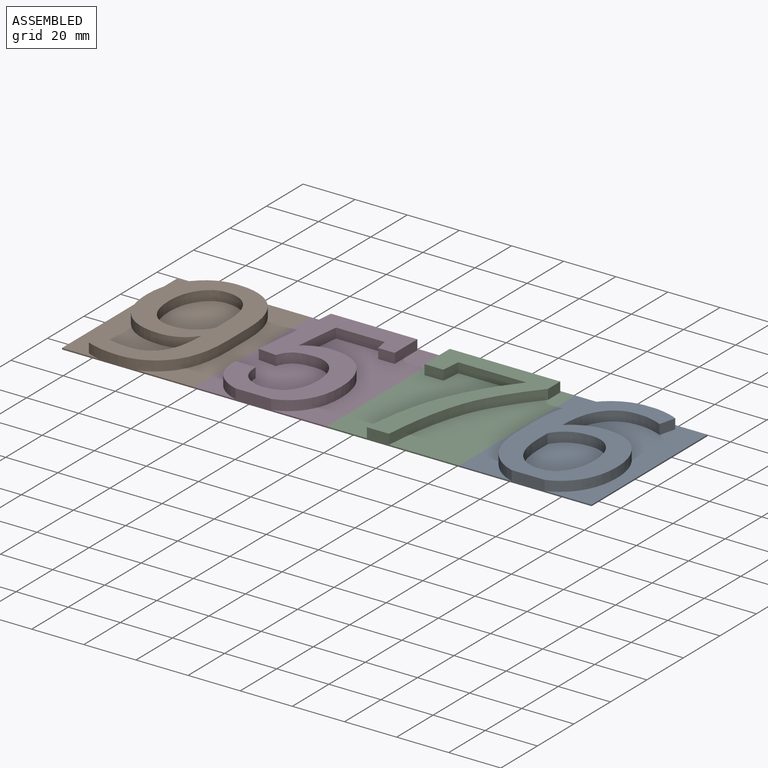
[diagram: assembled view]
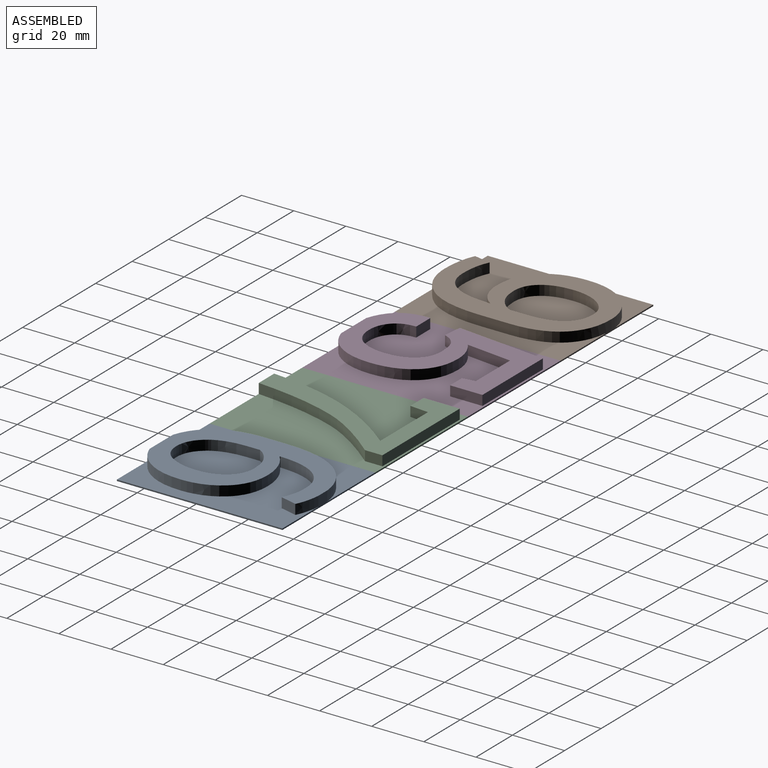
[diagram: assembled view, second angle]
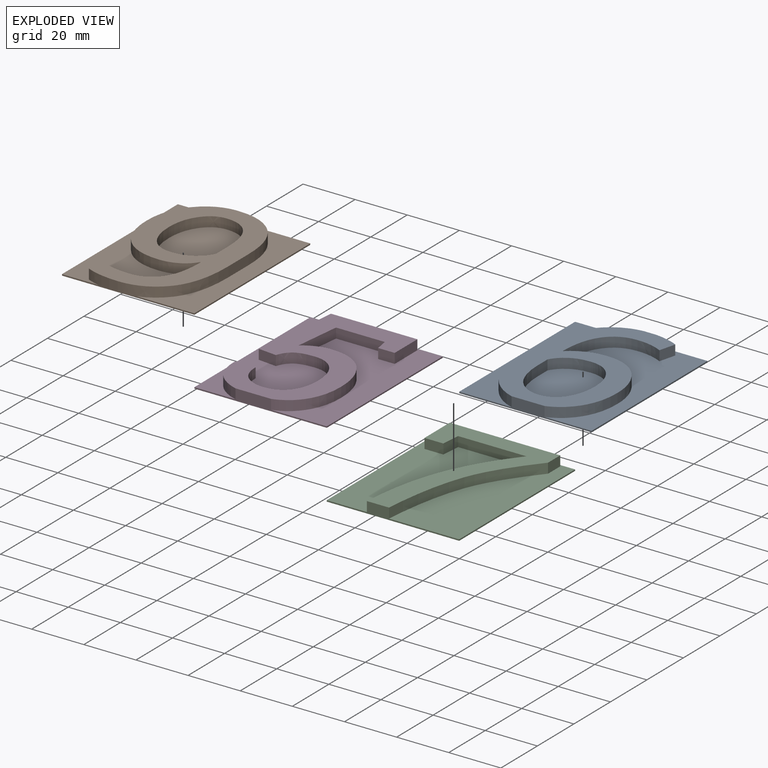
[diagram: exploded view]
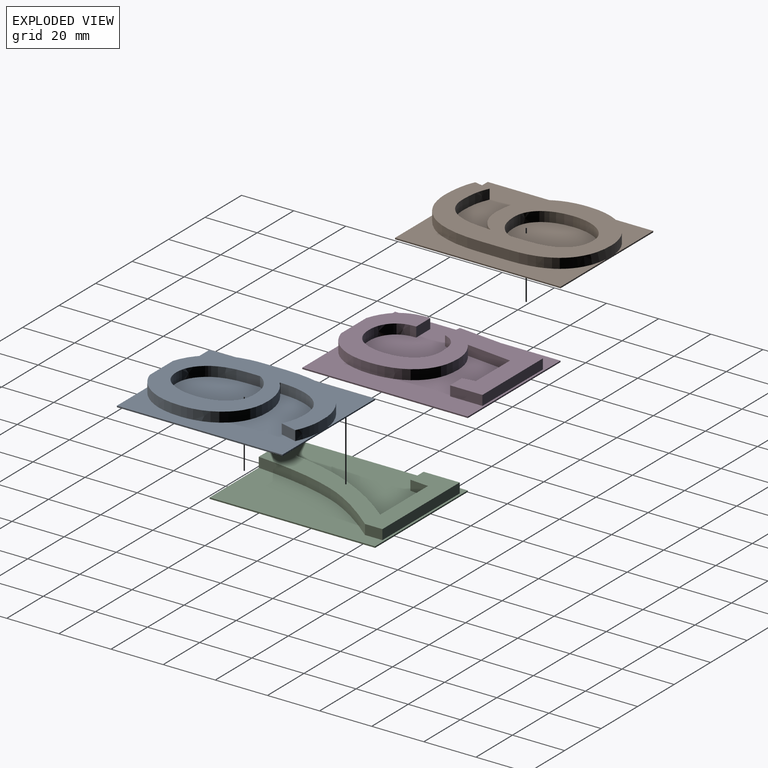
[diagram: exploded view, second angle]
ASSEMBLY  parts=4 mates=3
PART A: 37 faces, bbox 50.8x63.9x4.3 mm
  f0: plane 63.78x36.84mm, normal (0,0,1), area 947.2mm2, adj f2,f3,f4,f15,f21,f22,f23,f24
  f1: plane 63.89x26.83mm, normal (0,0,1), area 547.7mm2, adj f2,f4,f5,f16,f17,f18,f19,f20
  f2: plane 50.8x4.32mm, normal (0,-1,0), area 74mm2, adj f0,f1,f3,f5,f6,f20,f21,f35
  f3: plane 63.5x0.51mm, normal (1,0,0), area 32.3mm2, adj f0,f2,f4,f6
  f4: plane 50.8x4.32mm, normal (0,1,0), area 44.3mm2, adj f0,f1,f3,f5,f6,f15,f16,f35
  f5: plane 63.5x0.51mm, normal (-1,0,0), area 32.3mm2, adj f1,f2,f4,f6
  f6: plane 63.5x50.8mm, normal (0,0,-1), area 3225.8mm2, adj f2,f3,f4,f5
  f7: extruded ~7.41x3.81mm, area 29.4mm2, adj f8,f34,f35,f36
  f8: extruded ~8.63x4.01mm, area 37.7mm2, adj f7,f9,f35,f36
  f9: extruded ~10.21x3.81mm, area 41.5mm2, adj f8,f10,f35,f36
  f10: extruded ~10.96x3.81mm, area 43.8mm2, adj f9,f11,f35,f36
  f11: extruded ~8.12x4.41mm, area 36.8mm2, adj f10,f12,f35,f36
  f12: extruded ~9.15x4.69mm, area 40.7mm2, adj f11,f13,f35,f36
  f13: extruded ~13.43x3.81mm, area 54mm2, adj f12,f14,f35,f36
  f14: plane 5.04x3.81mm, normal (1,0,0), area 19.2mm2, adj f13,f34,f35,f36
  f15: extruded ~3.89x3.81mm, area 15mm2, adj f0,f4,f33,f35
  f16: extruded ~14.45x7.69mm, area 64.1mm2, adj f1,f4,f17,f35
  f17: extruded ~22.7x6.55mm, area 91.8mm2, adj f1,f16,f18,f35
  f18: plane 8.43x3.81mm, normal (-1,0,0), area 32.1mm2, adj f1,f17,f19,f35
  f19: extruded ~18.91x6.03mm, area 77.4mm2, adj f1,f18,f20,f35
  f20: extruded ~8.86x5.77mm, area 40.8mm2, adj f1,f2,f19,f35
  f21: extruded ~7.88x5.23mm, area 36.5mm2, adj f0,f2,f22,f35
  f22: extruded ~15.87x5.31mm, area 65.2mm2, adj f0,f21,f23,f35
  f23: extruded ~14.73x5mm, area 60.6mm2, adj f0,f22,f24,f35
  f24: extruded ~13.39x5.82mm, area 57.5mm2, adj f0,f23,f25,f35
  f25: extruded ~7.54x3.81mm, area 29.3mm2, adj f0,f24,f26,f35
  f26: extruded ~5.9x3.81mm, area 26.4mm2, adj f0,f25,f27,f35
  f27: plane 3.81x0.17mm, normal (0.71,0.71,0), area 0.9mm2, adj f0,f26,f28,f35
  f28: extruded ~15.01x4.15mm, area 60.3mm2, adj f0,f27,f29,f35
  f29: extruded ~10.49x4.97mm, area 45.9mm2, adj f0,f28,f30,f35
  f30: extruded ~5.51x3.81mm, area 21.2mm2, adj f0,f29,f31,f35
  f31: extruded ~4.44x3.81mm, area 18mm2, adj f0,f30,f32,f35
  f32: plane 6.33x3.81mm, normal (0.97,-0.25,0), area 24.9mm2, adj f0,f31,f33,f35
  f33: extruded ~5.24x3.81mm, area 21.2mm2, adj f0,f15,f32,f35
  f34: extruded ~4.67x4.64mm, area 25.4mm2, adj f7,f14,f35,f36
  f35: plane 63.89x40.74mm, normal (0,0,1), area 1155.6mm2, adj f2,f4,f7,f8,f9,f10,f11,f12
  f36: plane 29.59x23.81mm, normal (0,0,1), area 575.3mm2, adj f7,f8,f9,f10,f11,f12,f13,f14
PART B: 39 faces, bbox 50.8x64.5x4.3 mm
  f0: plane 63.93x25.73mm, normal (0,0,1), area 605.9mm2, adj f2,f3,f4,f30,f31,f32,f33,f34
  f1: plane 63.67x35.36mm, normal (0,0,1), area 840mm2, adj f2,f4,f5,f16,f17,f18,f19,f20
  f2: plane 50.8x0.51mm, normal (0,-1,0), area 25.8mm2, adj f0,f1,f3,f5,f6,f37
  f3: plane 63.5x0.51mm, normal (1,0,0), area 32.3mm2, adj f0,f2,f4,f6
  f4: plane 50.8x0.51mm, normal (0,1,0), area 25.8mm2, adj f0,f1,f3,f5,f6,f7
  f5: plane 63.5x0.51mm, normal (-1,0,0), area 32.3mm2, adj f1,f2,f4,f6
  f6: plane 63.5x50.8mm, normal (0,0,-1), area 3225.8mm2, adj f2,f3,f4,f5
  f7: plane 4.68x0.12mm, normal (0,0,-1), area 0.3mm2, adj f4,f16,f34
  f8: extruded ~7.82x3.81mm, area 31.2mm2, adj f9,f35,f36,f38
  f9: extruded ~8.27x4.07mm, area 36.5mm2, adj f8,f10,f36,f38
  f10: extruded ~10.83x3.81mm, area 43.6mm2, adj f9,f11,f36,f38
  f11: extruded ~11.28x3.81mm, area 45.5mm2, adj f10,f12,f36,f38
  f12: extruded ~7.95x4.39mm, area 36mm2, adj f11,f13,f36,f38
  f13: extruded ~9.23x4.22mm, area 40.2mm2, adj f12,f14,f36,f38
  f14: extruded ~12.53x3.81mm, area 50.1mm2, adj f13,f15,f36,f38
  f15: plane 6.64x3.81mm, normal (-1,0,0), area 25.3mm2, adj f14,f35,f36,f38
  f16: extruded ~13.76x6.27mm, area 59.5mm2, adj f1,f7,f17,f34,f36
  f17: extruded ~16.08x5.66mm, area 66.5mm2, adj f1,f16,f18,f36
  f18: extruded ~15.92x5.29mm, area 65.5mm2, adj f1,f17,f19,f36
  f19: extruded ~14.47x5.66mm, area 61mm2, adj f1,f18,f20,f36
  f20: extruded ~6.97x3.81mm, area 27.5mm2, adj f1,f19,f21,f36
  f21: extruded ~4.82x4.44mm, area 25.3mm2, adj f1,f20,f22,f36
  f22: plane 3.81x0.22mm, normal (-0.78,-0.63,0), area 1.1mm2, adj f1,f21,f23,f36
  f23: extruded ~15.05x3.81mm, area 60mm2, adj f1,f22,f24,f36
  f24: extruded ~9.67x4.67mm, area 42.5mm2, adj f1,f23,f25,f36
  f25: extruded ~6.18x3.81mm, area 23.7mm2, adj f1,f24,f26,f36
  f26: extruded ~5.37x3.81mm, area 21.6mm2, adj f1,f25,f27,f36
  f27: plane 6.41x3.81mm, normal (-0.98,0.2,0), area 24.9mm2, adj f1,f26,f28,f36
  f28: extruded ~6.13x3.81mm, area 24.6mm2, adj f1,f27,f29,f36,f37
  f29: extruded ~6.7x3.81mm, area 25.7mm2, adj f28,f30,f36,f37
  f30: extruded ~16.12x7.11mm, area 69.5mm2, adj f0,f29,f31,f36,f37
  f31: extruded ~21.79x6.05mm, area 87.9mm2, adj f0,f30,f32,f36
  f32: plane 11.33x3.81mm, normal (1,0,0), area 43.2mm2, adj f0,f31,f33,f36
  f33: extruded ~18.16x5.66mm, area 74.2mm2, adj f0,f32,f34,f36
  f34: extruded ~15.48x6.14mm, area 65.4mm2, adj f0,f7,f16,f33,f36
  f35: extruded ~5.16x4.5mm, area 26.5mm2, adj f8,f15,f36,f38
  f36: plane 64.52x40.56mm, normal (0,0,1), area 1193.4mm2, adj f8,f9,f10,f11,f12,f13,f14,f15
  f37: plane 14.85x1.01mm, normal (0,0,-1), area 9mm2, adj f2,f28,f29,f30
  f38: plane 30.57x23.61mm, normal (0,0,1), area 595.8mm2, adj f8,f9,f10,f11,f12,f13,f14,f15
PART C: 19 faces, bbox 50.8x63.5x4.3 mm
  f0: plane 63.5x50.8mm, normal (0,0,1), area 2434.9mm2, adj f1,f2,f3,f4,f6,f7,f8,f9
  f1: plane 50.8x4.32mm, normal (0,-1,0), area 58.1mm2, adj f0,f2,f4,f5,f6,f17,f18
  f2: plane 63.5x0.51mm, normal (1,0,0), area 32.3mm2, adj f0,f1,f3,f5
  f3: plane 50.8x0.51mm, normal (0,1,0), area 25.8mm2, adj f0,f2,f4,f5
  f4: plane 63.5x0.51mm, normal (-1,0,0), area 32.3mm2, adj f0,f1,f3,f5
  f5: plane 63.5x50.8mm, normal (0,0,-1), area 3225.8mm2, adj f1,f2,f3,f4
  f6: plane 6.77x3.81mm, normal (0.99,-0.1,0), area 25.9mm2, adj f0,f1,f7,f18
  f7: extruded ~25.29x5.75mm, area 99.1mm2, adj f0,f6,f8,f18
  f8: extruded ~23.97x15.36mm, area 108.9mm2, adj f0,f7,f9,f18
  f9: plane 6.67x3.81mm, normal (1,0,0), area 25.4mm2, adj f0,f8,f10,f18
  f10: plane 42.37x3.81mm, normal (0,1,0), area 161.4mm2, adj f0,f9,f11,f18
  f11: plane 13.86x3.81mm, normal (-1,0,0), area 52.8mm2, adj f0,f10,f12,f18
  f12: plane 7.23x3.81mm, normal (0,-1,0), area 27.6mm2, adj f0,f11,f13,f18
  f13: plane 7.19x3.81mm, normal (1,-0.09,0), area 27.5mm2, adj f0,f12,f14,f18
  f14: plane 26.18x3.81mm, normal (0,-1,0), area 99.8mm2, adj f0,f13,f15,f18
  f15: extruded ~22.79x14.25mm, area 102.7mm2, adj f0,f14,f16,f18
  f16: extruded ~26.48x7.01mm, area 104.8mm2, adj f0,f15,f17,f18
  f17: plane 6.77x3.81mm, normal (-0.99,0.1,0), area 25.9mm2, adj f0,f1,f16,f18
  f18: plane 62.7x42.37mm, normal (0,0,1), area 790.9mm2, adj f1,f6,f7,f8,f9,f10,f11,f12
PART D: 33 faces, bbox 50.8x63.8x4.3 mm
  f0: plane 63.75x50.8mm, normal (0,0,1), area 2076.5mm2, adj f1,f2,f3,f4,f6,f7,f8,f9
  f1: plane 50.8x4.32mm, normal (0,-1,0), area 78mm2, adj f0,f2,f4,f5,f6,f31,f32
  f2: plane 63.5x0.51mm, normal (1,0,0), area 32.3mm2, adj f0,f1,f3,f5
  f3: plane 50.8x0.51mm, normal (0,1,0), area 25.8mm2, adj f0,f2,f4,f5
  f4: plane 63.5x0.51mm, normal (-1,0,0), area 32.3mm2, adj f0,f1,f3,f5
  f5: plane 63.5x50.8mm, normal (0,0,-1), area 3225.8mm2, adj f1,f2,f3,f4
  f6: extruded ~7.77x4.82mm, area 35.3mm2, adj f0,f1,f7,f32
  f7: extruded ~15.16x5.06mm, area 62.3mm2, adj f0,f6,f8,f32
  f8: extruded ~15.41x4.97mm, area 63.1mm2, adj f0,f7,f9,f32
  f9: extruded ~13.63x5.64mm, area 58.1mm2, adj f0,f8,f10,f32
  f10: extruded ~5.62x3.81mm, area 21.9mm2, adj f0,f9,f11,f32
  f11: extruded ~4.37x3.81mm, area 19.1mm2, adj f0,f10,f12,f32
  f12: plane 17.61x3.81mm, normal (0.99,-0.11,0), area 67.5mm2, adj f0,f11,f13,f32
  f13: plane 18.73x3.81mm, normal (0,-1,0), area 71.4mm2, adj f0,f12,f14,f32
  f14: plane 4.86x3.81mm, normal (-0.99,-0.16,0), area 18.8mm2, adj f0,f13,f15,f32
  f15: plane 6.38x3.81mm, normal (0,-1,0), area 24.3mm2, adj f0,f14,f16,f32
  f16: plane 12.4x3.81mm, normal (1,0,0), area 47.3mm2, adj f0,f15,f17,f32
  f17: plane 33.11x3.81mm, normal (0,1,0), area 126.2mm2, adj f0,f16,f18,f32
  f18: plane 34.41x3.81mm, normal (-0.99,0.1,0), area 131.8mm2, adj f0,f17,f19,f32
  f19: plane 7.07x3.81mm, normal (-0.1,-0.99,0), area 27.1mm2, adj f0,f18,f20,f32
  f20: extruded ~4.61x3.81mm, area 22mm2, adj f0,f19,f21,f32
  f21: extruded ~7.25x3.81mm, area 28.6mm2, adj f0,f20,f22,f32
  f22: extruded ~8.3x3.86mm, area 36.2mm2, adj f0,f21,f23,f32
  f23: extruded ~9.92x3.81mm, area 40.2mm2, adj f0,f22,f24,f32
  f24: extruded ~10.38x3.81mm, area 41.9mm2, adj f0,f23,f25,f32
  f25: extruded ~8.36x3.81mm, area 36.3mm2, adj f0,f24,f26,f32
  f26: extruded ~7.59x3.81mm, area 31.7mm2, adj f0,f25,f27,f32
  f27: extruded ~7.92x3.81mm, area 33.1mm2, adj f0,f26,f28,f32
  f28: plane 7.68x3.81mm, normal (0,1,0), area 29.2mm2, adj f0,f27,f29,f32
  f29: plane 3.81x0.26mm, normal (-0.95,0.3,0), area 1mm2, adj f0,f28,f30,f32
  f30: extruded ~12.79x5.07mm, area 54.4mm2, adj f0,f29,f31,f32
  f31: extruded ~6.52x3.81mm, area 28.3mm2, adj f0,f1,f30,f32
  f32: plane 62.95x38.32mm, normal (0,0,1), area 1149.3mm2, adj f1,f6,f7,f8,f9,f10,f11,f12
PLACE A t=(147.13,-14.78,9.26)mm
PLACE B t=(-5.27,-14.78,9.26)mm
PLACE C t=(96.33,-14.78,9.26)mm
PLACE D t=(45.53,-14.78,9.26)mm
MATE fastened C.f0 <-> D.f0  axis (0,0,1) through (45.53,16.97,9.26)mm
MATE fastened A.f1 <-> C.f0  axis (0,0,1) through (96.33,16.97,9.26)mm
MATE fastened B.f0 <-> D.f0  axis (0,0,1) through (-5.27,16.97,9.26)mm
